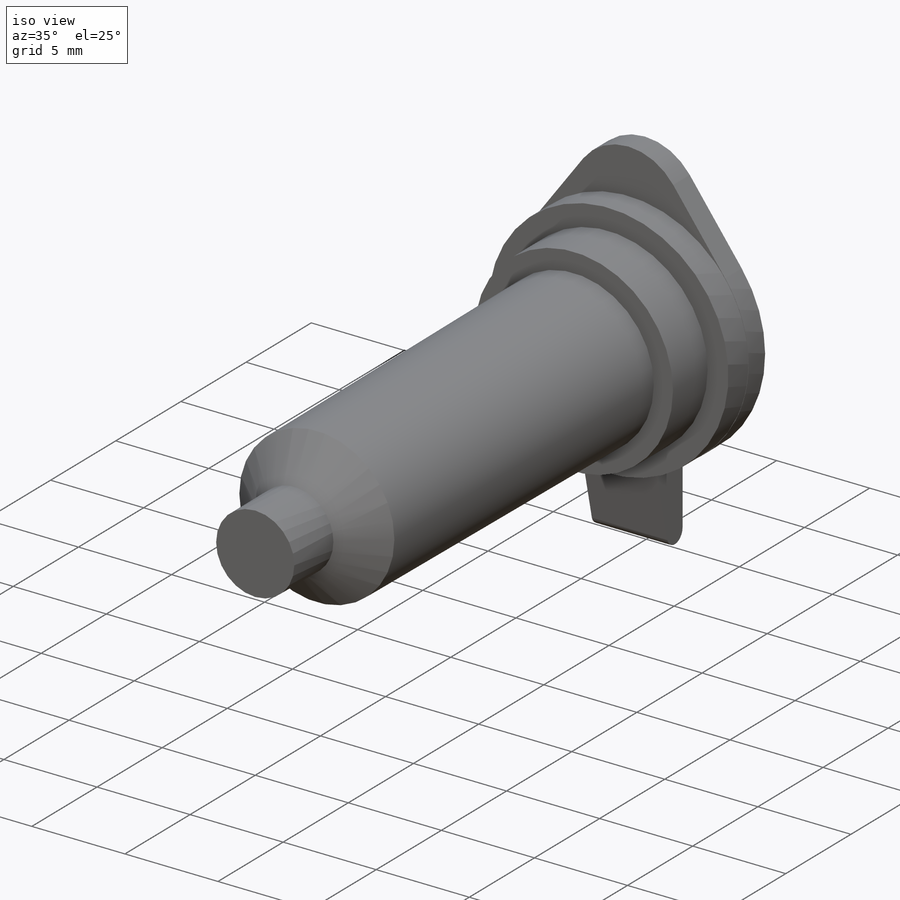
[diagram: iso view]
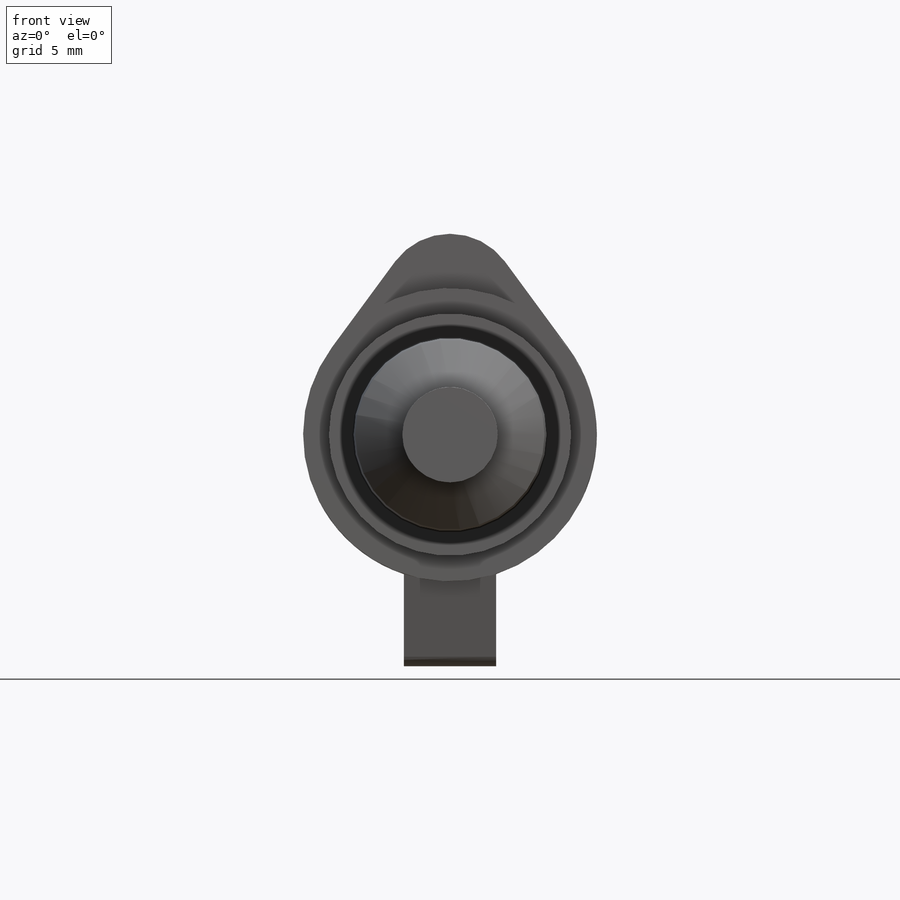
[diagram: front view]
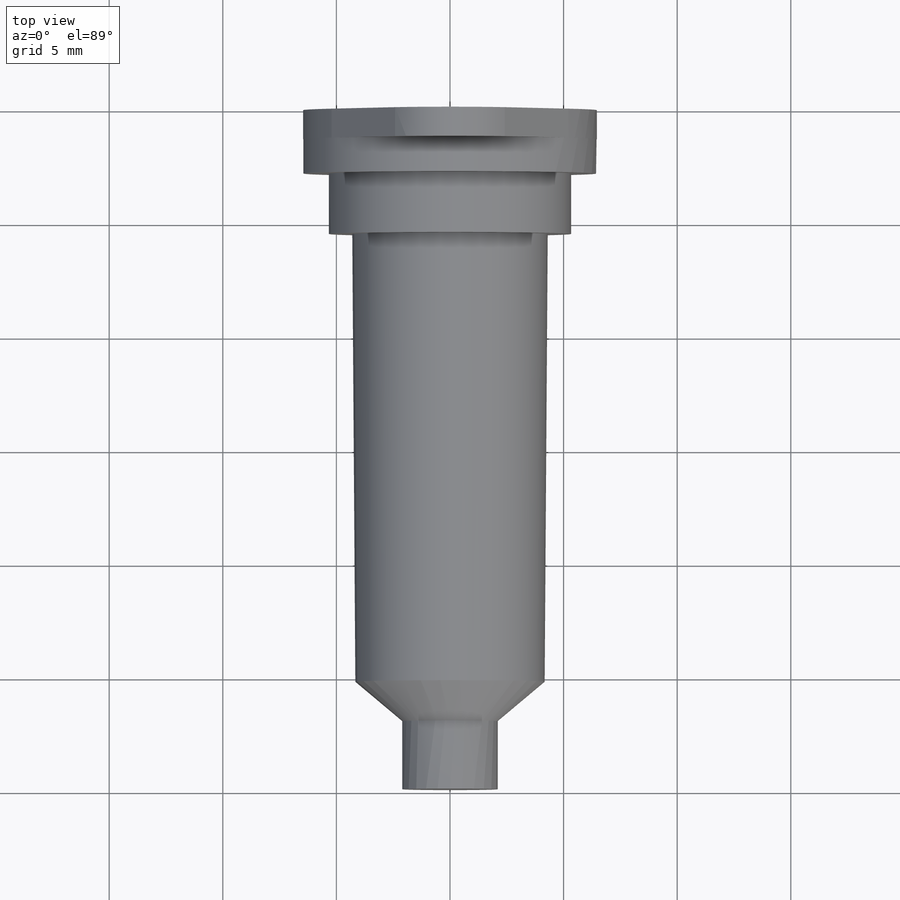
[diagram: top view]
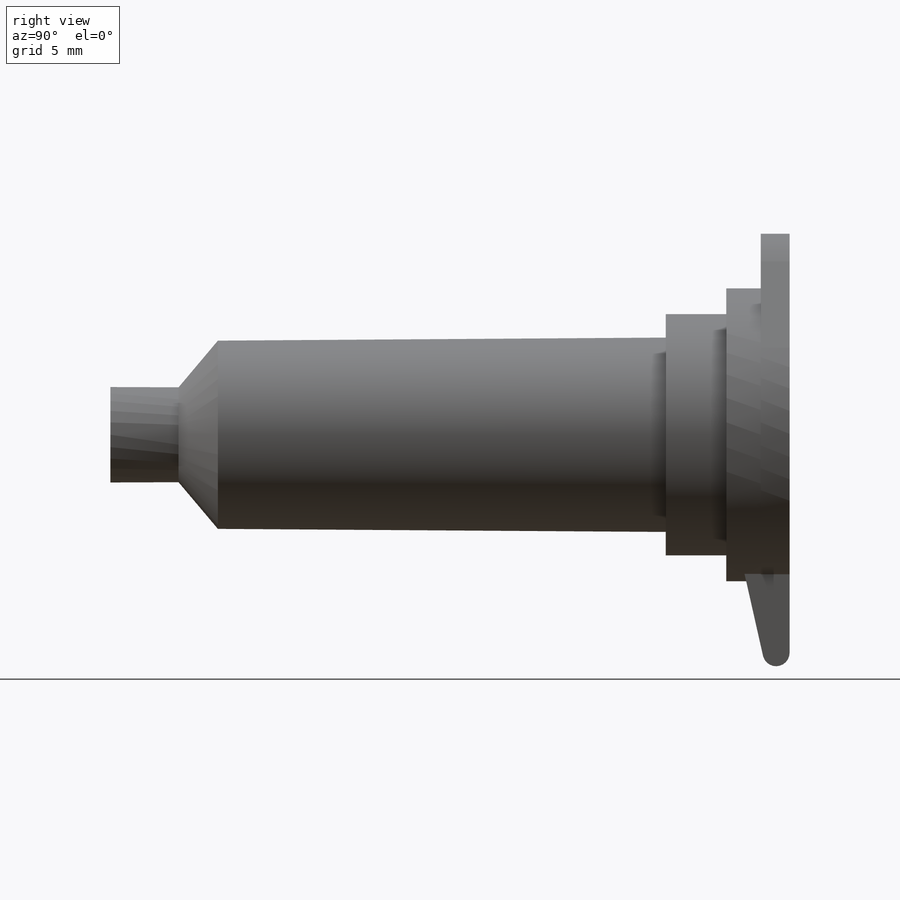
[diagram: right view]
SOLIDWORKS PART (.sldprt)
format: sldprt  version: not decoded by parser v0  size: 182,272 bytes
history: native  units: mm
features: sketch x3, extrude x2, material x1, revolve x1 (+12 scaffold rows collapsed)
feature tree (19):
  scaffold x12  (default folders/planes/origin — collapsed)
  material  "Material <not specified>"
  sketch  "Sketch1"  dims[D1=2.1mm D2=3.0mm D3=4.165mm D4=4.3mm D5=5.33mm D6=6.45mm D7=28.62mm D8=1.52mm D9=4.18mm D10=4.73mm]
  revolve  "Revolve1"  Angle=360deg
  sketch  "Sketch2"  dims[D1=12.93mm D3=6.0mm D2=15.31mm]
  extrude  "Boss-Extrude1"  Depth=1.27mm
  sketch  "Sketch3"  dims[D1=4.85mm]
  extrude  "Boss-Extrude2"  Depth=4.06mm
decode coverage: 6 of 6 modeling features carry decoded parameters
note: suppression state not decoded; provenance and decode notes live in map.json
